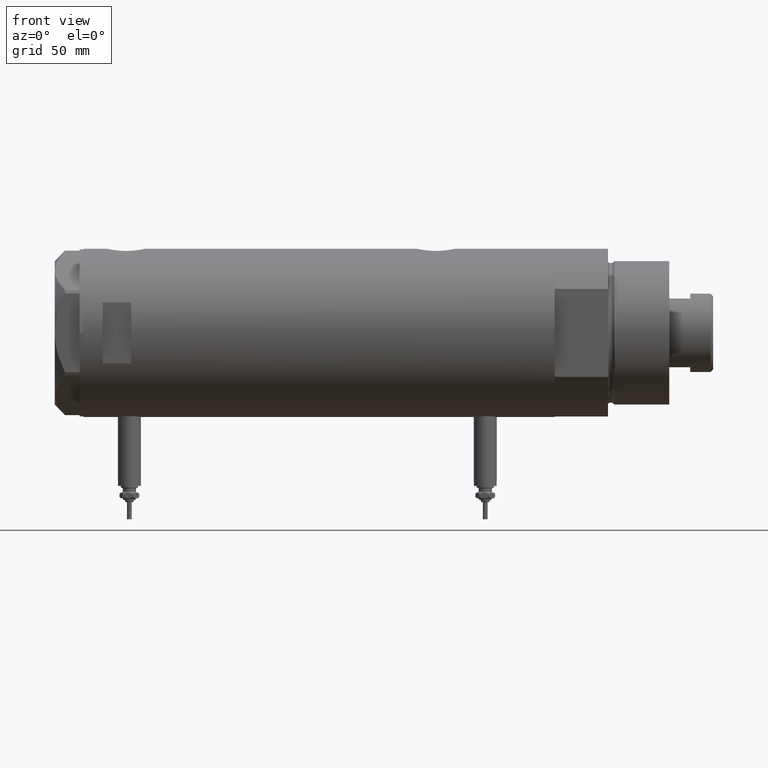
[diagram: clean part render]
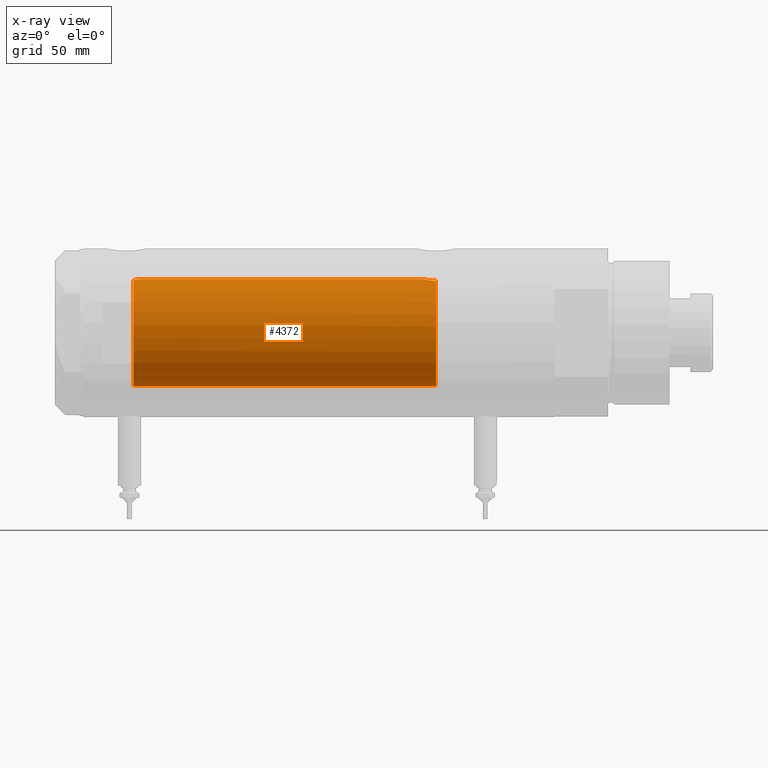
[diagram: x-ray — body ghosted, one internal face saturated and labeled with its STEP entity id]
A machine part, front view, then the same camera in x-ray: the body is ghosted and one INTERNAL B-rep face — a face not visible from any outside direction — is saturated and labeled: STEP entity #4372.
In plain terms, the highlighted cylindrical surface (partial cylindrical patch) has radius 28 mm, axis along (1, 0, -0).
Its self-contained STEP definition (entity closure, byte-faithful):
#58 = EDGE_CURVE ( 'NONE', #5629, #3855, #5221, .T. ) ;
#59 = CARTESIAN_POINT ( 'NONE',  ( 27.21605408577812568, -6.579240077698937483, -61.20000000000000284 ) ) ;
#147 = CARTESIAN_POINT ( 'NONE',  ( 27.21445766202535310, -6.585843933871719180, -60.76551644800678531 ) ) ;
#174 = CARTESIAN_POINT ( 'NONE',  ( 27.28993558706078915, -6.267945658363877293, -59.05080727201159618 ) ) ;
#180 = B_SPLINE_CURVE_WITH_KNOTS ( 'NONE', 3,
 ( #1586, #3438, #3537, #2577, #812, #357, #2112, #3127, #3958, #4930, #5813, #1290, #1705, #4969 ),
 .UNSPECIFIED., .F., .F.,
 ( 4, 2, 2, 2, 2, 2, 4 ),
 ( 0.000000000000000000, 0.001600622945448065652, 0.002400934418172098045, 0.003201245890896130437, 0.004001557363620162830, 0.004801868836344194355, 0.006402491781792285161 ),
 .UNSPECIFIED. ) ;
#272 = CARTESIAN_POINT ( 'NONE',  ( 27.50152613123828260, -5.265397630035327126, -57.13030070339349464 ) ) ;
#357 = CARTESIAN_POINT ( 'NONE',  ( 27.87937907436173646, -2.608343522657388114, 94.85310177797239817 ) ) ;
#472 = CYLINDRICAL_SURFACE ( 'NONE', #798, 28.00000000000000000 ) ;
#476 = AXIS2_PLACEMENT_3D ( 'NONE', #5303, #2969, #3414 ) ;
#584 = ORIENTED_EDGE ( 'NONE', *, *, #3653, .F. ) ;
#626 = EDGE_CURVE ( 'NONE', #5732, #3855, #5220, .T. ) ;
#663 = CARTESIAN_POINT ( 'NONE',  ( 27.65700784474207552, -4.380217411398919403, -56.17047453774085852 ) ) ;
#731 = CARTESIAN_POINT ( 'NONE',  ( 27.99747352180818538, -0.4347571716796903019, -54.53072531013187074 ) ) ;
#798 = AXIS2_PLACEMENT_3D ( 'NONE', #2326, #4660, #5091 ) ;
#811 = ORIENTED_EDGE ( 'NONE', *, *, #2764, .F. ) ;
#812 = CARTESIAN_POINT ( 'NONE',  ( 27.92172852149584727, -2.107204279616225140, 94.66075932795374115 ) ) ;
#818 = DIRECTION ( 'NONE',  ( -0.000000000000000000, -0.000000000000000000, -1.000000000000000000 ) ) ;
#1000 = AXIS2_PLACEMENT_3D ( 'NONE', #2963, #1521, #3329 ) ;
#1007 = CARTESIAN_POINT ( 'NONE',  ( 28.00000000000000000, 0.000000000000000000, 94.32000000000000739 ) ) ;
#1051 = CARTESIAN_POINT ( 'NONE',  ( -28.00000000000000000, 0.000000000000000000, 123.2000000000000028 ) ) ;
#1207 = CARTESIAN_POINT ( 'NONE',  ( 27.92072186409136236, -2.143620579020478090, -54.86381653969048955 ) ) ;
#1241 = VERTEX_POINT ( 'NONE', #4363 ) ;
#1290 = CARTESIAN_POINT ( 'NONE',  ( 27.59002303441815229, -4.790793940098342141, 96.35816176521461784 ) ) ;
#1311 = FACE_OUTER_BOUND ( 'NONE', #5137, .T. ) ;
#1521 = DIRECTION ( 'NONE',  ( 0.000000000000000000, 0.000000000000000000, 1.000000000000000000 ) ) ;
#1572 = CARTESIAN_POINT ( 'NONE',  ( 27.43032278742161623, -5.620674311437143800, -57.67201933177630480 ) ) ;
#1586 = CARTESIAN_POINT ( 'NONE',  ( 28.00000000000000000, 0.000000000000000000, 94.32000000000000739 ) ) ;
#1598 = CARTESIAN_POINT ( 'NONE',  ( 27.94978721344213568, -1.729827962054681922, -54.73650615356604021 ) ) ;
#1705 = CARTESIAN_POINT ( 'NONE',  ( 27.52591771332015114, -5.139864392033250517, 96.75689419952075809 ) ) ;
#1995 = EDGE_CURVE ( 'NONE', #5448, #1241, #5005, .T. ) ;
#2031 = CARTESIAN_POINT ( 'NONE',  ( 27.40754191563011588, -5.730381220489944027, -57.85863096555547713 ) ) ;
#2066 = CARTESIAN_POINT ( 'NONE',  ( 27.80238224209237430, -3.326386449198543538, -55.41852099557871014 ) ) ;
#2070 = ORIENTED_EDGE ( 'NONE', *, *, #5208, .T. ) ;
#2112 = CARTESIAN_POINT ( 'NONE',  ( 27.85549665828546750, -2.850794839423819393, 94.96367683698767337 ) ) ;
#2326 = CARTESIAN_POINT ( 'NONE',  ( 0.000000000000000000, 0.000000000000000000, 123.2000000000000028 ) ) ;
#2527 = CARTESIAN_POINT ( 'NONE',  ( 27.70817449315709524, -4.048115514111798596, -55.89463981057747333 ) ) ;
#2577 = CARTESIAN_POINT ( 'NONE',  ( 27.94009016578284132, -1.849003963078879931, 94.57947875320516573 ) ) ;
#2591 = CARTESIAN_POINT ( 'NONE',  ( 27.84562549742226523, -2.942523713096117710, -55.21055141078907269 ) ) ;
#2682 = VERTEX_POINT ( 'NONE', #4151 ) ;
#2764 = EDGE_CURVE ( 'NONE', #5732, #1241, #4128, .T. ) ;
#2890 = DIRECTION ( 'NONE',  ( -0.000000000000000000, -0.000000000000000000, -1.000000000000000000 ) ) ;
#2963 = CARTESIAN_POINT ( 'NONE',  ( 0.000000000000000000, 0.000000000000000000, 97.20000000000000284 ) ) ;
#2969 = DIRECTION ( 'NONE',  ( 0.000000000000000000, 0.000000000000000000, -1.000000000000000000 ) ) ;
#2975 = CARTESIAN_POINT ( 'NONE',  ( 27.55308463769899774, -4.992385646466217075, -56.79156508565561978 ) ) ;
#3127 = CARTESIAN_POINT ( 'NONE',  ( 27.80347162683809259, -3.320043793664065657, 95.21279742576763283 ) ) ;
#3133 = CARTESIAN_POINT ( 'NONE',  ( 28.00000000000000000, 3.429011037612589276E-15, 123.2000000000000028 ) ) ;
#3329 = DIRECTION ( 'NONE',  ( 1.000000000000000000, 0.000000000000000000, 0.000000000000000000 ) ) ;
#3414 = DIRECTION ( 'NONE',  ( -1.000000000000000000, 0.000000000000000000, 0.000000000000000000 ) ) ;
#3438 = CARTESIAN_POINT ( 'NONE',  ( 28.00000000000001066, -0.5413643627070152675, 94.32000000000002160 ) ) ;
#3447 = CARTESIAN_POINT ( 'NONE',  ( 28.00000000000000000, 8.058211040235281960E-16, -54.52000000000001023 ) ) ;
#3467 = CARTESIAN_POINT ( 'NONE',  ( -28.00000000000000000, 0.000000000000000000, -61.20000000000000284 ) ) ;
#3534 = ORIENTED_EDGE ( 'NONE', *, *, #58, .F. ) ;
#3537 = CARTESIAN_POINT ( 'NONE',  ( 27.98432695902670631, -1.071102777755447377, 94.38580344277589518 ) ) ;
#3621 = CIRCLE ( 'NONE', #1000, 28.00000000000000000 ) ;
#3653 = EDGE_CURVE ( 'NONE', #5448, #2682, #180, .T. ) ;
#3848 = CARTESIAN_POINT ( 'NONE',  ( 27.34439869716139171, -6.024183900845905271, -58.44423424753806273 ) ) ;
#3855 = VERTEX_POINT ( 'NONE', #3467 ) ;
#3913 = CARTESIAN_POINT ( 'NONE',  ( 27.97963188585489291, -1.089002775846584337, -54.60708365738663161 ) ) ;
#3940 = CARTESIAN_POINT ( 'NONE',  ( 27.26146154097650154, -6.389008671741138734, -59.46702257288441729 ) ) ;
#3958 = CARTESIAN_POINT ( 'NONE',  ( 27.77532582369374481, -3.546840381797768949, 95.35134423525664715 ) ) ;
#4128 = B_SPLINE_CURVE_WITH_KNOTS ( 'NONE', 3,
 ( #4333, #147, #5260, #3940, #174, #3848, #5709, #2031, #1572, #272, #2975, #663, #2527, #4367, #2066, #2591, #5767, #1207, #1598, #3913, #4886, #731, #5792, #3447 ),
 .UNSPECIFIED., .F., .F.,
 ( 4, 2, 2, 2, 2, 2, 2, 2, 2, 2, 2, 4 ),
 ( 0.01022506235776657162, 0.01152748911132702239, 0.01282991586488747143, 0.01348112924166769769, 0.01413234261844792047, 0.01543476937200837125, 0.01673719612556882202, 0.01738840950234904481, 0.01803962287912927107, 0.01934204963268972011, 0.01999326300946994983, 0.02064447638625017609 ),
 .UNSPECIFIED. ) ;
#4151 = CARTESIAN_POINT ( 'NONE',  ( 27.46622653369042411, -5.441176343402230664, 97.20000000000000284 ) ) ;
#4332 = VECTOR ( 'NONE', #2890, 1000.000000000000000 ) ;
#4333 = CARTESIAN_POINT ( 'NONE',  ( 27.21605408577812568, -6.579240077698937483, -61.20000000000000284 ) ) ;
#4363 = CARTESIAN_POINT ( 'NONE',  ( 28.00000000000000000, 8.058211040235281960E-16, -54.52000000000001023 ) ) ;
#4367 = CARTESIAN_POINT ( 'NONE',  ( 27.77950496257090762, -3.511644525604265432, -55.53121142391831455 ) ) ;
#4372 = ADVANCED_FACE ( 'NONE', ( #1311 ), #472, .F. ) ;
#4536 = CARTESIAN_POINT ( 'NONE',  ( -28.00000000000000000, 0.000000000000000000, 97.20000000000000284 ) ) ;
#4660 = DIRECTION ( 'NONE',  ( -0.000000000000000000, -0.000000000000000000, -1.000000000000000000 ) ) ;
#4886 = CARTESIAN_POINT ( 'NONE',  ( 27.98730817101646551, -0.8707001454186197309, -54.57418472479973559 ) ) ;
#4930 = CARTESIAN_POINT ( 'NONE',  ( 27.71590503262370930, -3.984646725731645578, 95.65688566206239329 ) ) ;
#4969 = CARTESIAN_POINT ( 'NONE',  ( 27.46622653369042411, -5.441176343402230664, 97.20000000000000284 ) ) ;
#5005 = LINE ( 'NONE', #3133, #5138 ) ;
#5019 = ORIENTED_EDGE ( 'NONE', *, *, #626, .T. ) ;
#5091 = DIRECTION ( 'NONE',  ( -1.000000000000000000, 0.000000000000000000, 0.000000000000000000 ) ) ;
#5137 = EDGE_LOOP ( 'NONE', ( #584, #6004, #811, #5019, #3534, #2070 ) ) ;
#5138 = VECTOR ( 'NONE', #818, 1000.000000000000000 ) ;
#5208 = EDGE_CURVE ( 'NONE', #5629, #2682, #3621, .T. ) ;
#5220 = CIRCLE ( 'NONE', #476, 28.00000000000000000 ) ;
#5221 = LINE ( 'NONE', #1051, #4332 ) ;
#5260 = CARTESIAN_POINT ( 'NONE',  ( 27.22359243188622457, -6.548490838374227963, -60.32326656774585416 ) ) ;
#5303 = CARTESIAN_POINT ( 'NONE',  ( 0.000000000000000000, 0.000000000000000000, -61.20000000000000284 ) ) ;
#5448 = VERTEX_POINT ( 'NONE', #1007 ) ;
#5629 = VERTEX_POINT ( 'NONE', #4536 ) ;
#5709 = CARTESIAN_POINT ( 'NONE',  ( 27.36461315879794043, -5.931995402771976345, -58.24427370164930551 ) ) ;
#5732 = VERTEX_POINT ( 'NONE', #59 ) ;
#5767 = CARTESIAN_POINT ( 'NONE',  ( 27.86589383012872645, -2.744524676092583437, -55.11575755532262377 ) ) ;
#5792 = CARTESIAN_POINT ( 'NONE',  ( 27.99999999999999645, -0.2171842281426351329, -54.52000000000000313 ) ) ;
#5813 = CARTESIAN_POINT ( 'NONE',  ( 27.68450581507584474, -4.196237264393388067, 95.82467802964416137 ) ) ;
#6004 = ORIENTED_EDGE ( 'NONE', *, *, #1995, .T. ) ;